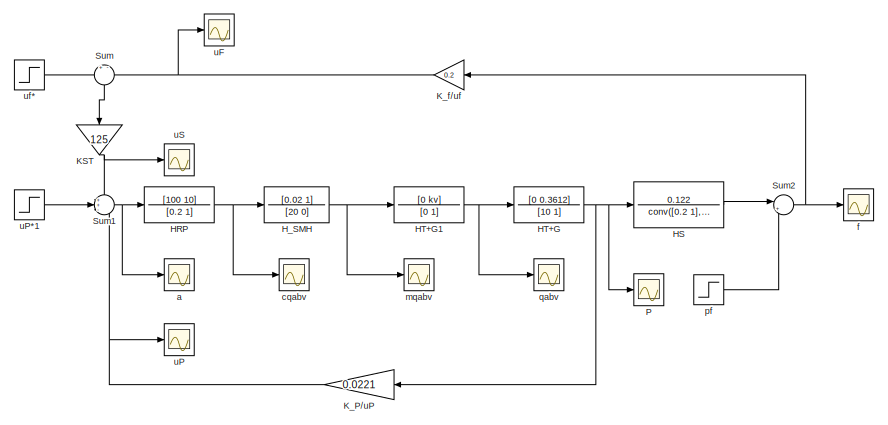
[diagram: root canvas - part 1/4, top left region]
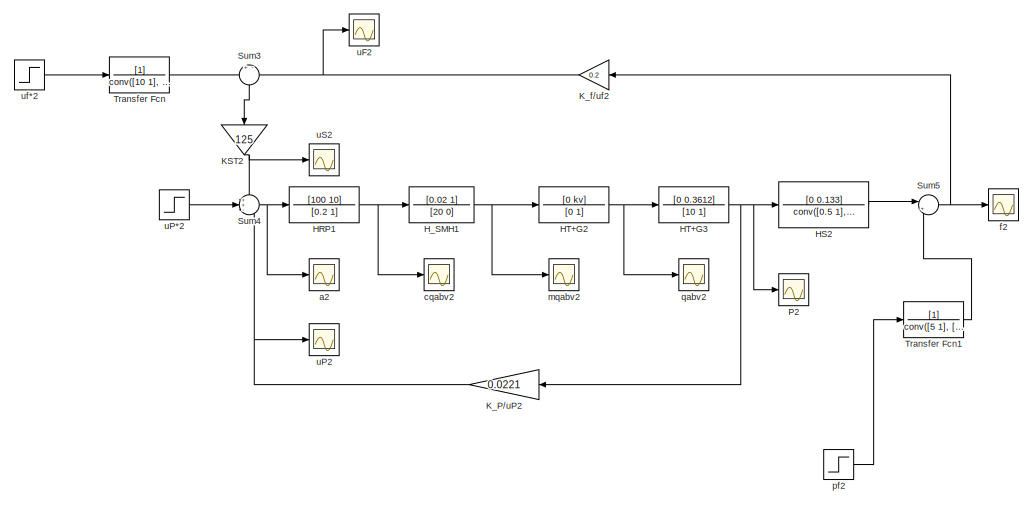
[diagram: root canvas - part 2/4, top right region]
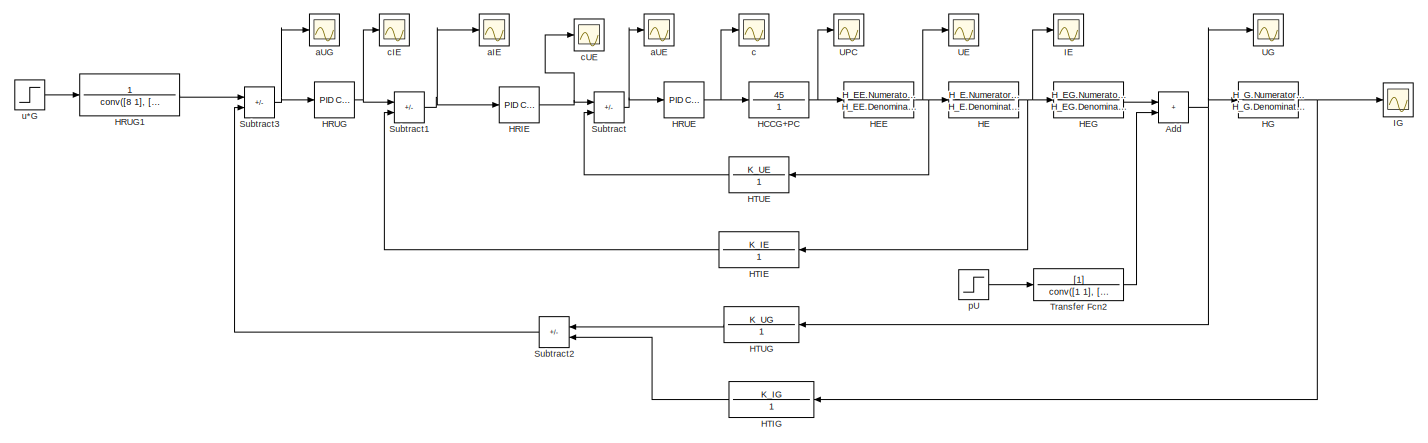
[diagram: root canvas - part 3/4, full width, middle band]
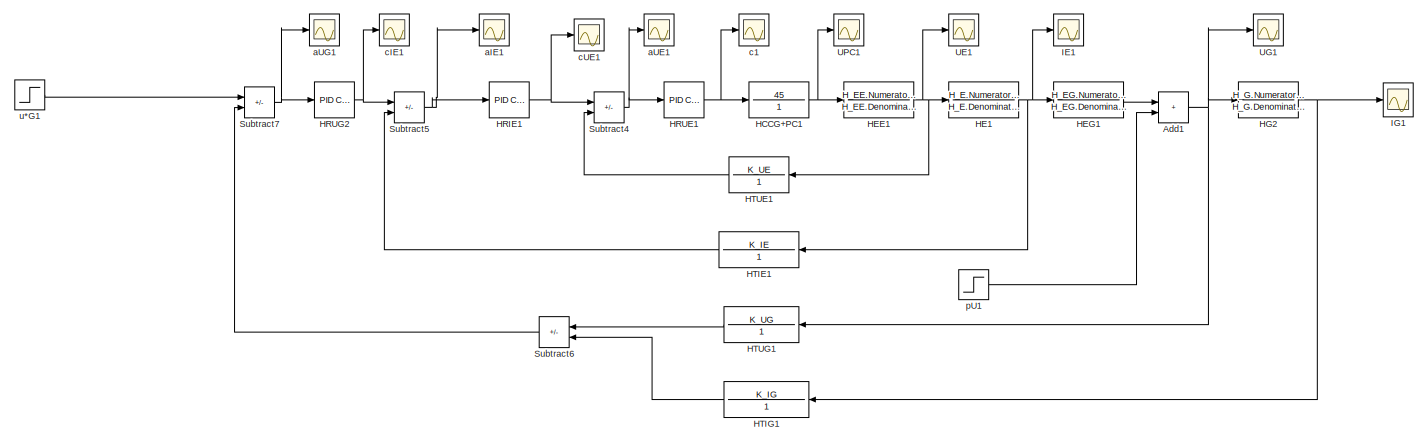
[diagram: root canvas - part 4/4, full width, bottom band]
MODEL slx_85c4b549ced2
KIND model
CONFIG AbsTol = auto
CONFIG EnableMultiTasking = off
CONFIG FixedStep = auto
CONFIG MaxStep = auto
CONFIG MinStep = auto
CONFIG RelTol = 1e-3
CONFIG SampleTimeConstraint = Unconstrained
CONFIG SolverName = VariableStepAuto
CONFIG StartTime = 0.0
CONFIG StopTime = 10.0
BLOCK [Sum] Add
  IconShape = rectangular
BLOCK [Sum] Add1
  IconShape = rectangular
BLOCK [TransferFcn] HCCG+PC
  Denominator = 1
  Numerator = 45
BLOCK [TransferFcn] HCCG+PC1
  Denominator = 1
  Numerator = 45
BLOCK [TransferFcn] HE
  Denominator = H_E.Denominator{1}
  Numerator = H_E.Numerator{1}
BLOCK [TransferFcn] HE1
  Denominator = H_E.Denominator{1}
  Numerator = H_E.Numerator{1}
BLOCK [TransferFcn] HEE
  Denominator = H_EE.Denominator{1}
  Numerator = H_EE.Numerator{1}
BLOCK [TransferFcn] HEE1
  Denominator = H_EE.Denominator{1}
  Numerator = H_EE.Numerator{1}
BLOCK [TransferFcn] HEG
  Denominator = H_EG.Denominator{1}
  Numerator = H_EG.Numerator{1}
BLOCK [TransferFcn] HEG1
  Denominator = H_EG.Denominator{1}
  Numerator = H_EG.Numerator{1}
BLOCK [TransferFcn] HG
  Denominator = H_G.Denominator{1}
  Numerator = H_G.Numerator{1}
BLOCK [TransferFcn] HG2
  Denominator = H_G.Denominator{1}
  Numerator = H_G.Numerator{1}
BLOCK [Reference] HRIE  REF=slpidlib/PID Controller
  LibrarySourceBlock = simulink/Continuous/PID Controller
  SourceBlock = slpidlib/PID Controller
  SourceType = PID 1dof
BLOCK [Reference] HRIE1  REF=slpidlib/PID Controller
  LibrarySourceBlock = simulink/Continuous/PID Controller
  SourceBlock = slpidlib/PID Controller
  SourceType = PID 1dof
BLOCK [TransferFcn] HRP
  Denominator = [0.2 1]
  Numerator = [100 10]
BLOCK [TransferFcn] HRP1
  Denominator = [0.2 1]
  Numerator = [100 10]
BLOCK [Reference] HRUE  REF=slpidlib/PID Controller
  LibrarySourceBlock = simulink/Continuous/PID Controller
  SourceBlock = slpidlib/PID Controller
  SourceType = PID 1dof
BLOCK [Reference] HRUE1  REF=slpidlib/PID Controller
  LibrarySourceBlock = simulink/Continuous/PID Controller
  SourceBlock = slpidlib/PID Controller
  SourceType = PID 1dof
BLOCK [Reference] HRUG  REF=slpidlib/PID Controller
  LibrarySourceBlock = simulink/Continuous/PID Controller
  SourceBlock = slpidlib/PID Controller
  SourceType = PID 1dof
BLOCK [TransferFcn] HRUG1
  Denominator = conv([8 1], [12 1])
  Numerator = 1
BLOCK [Reference] HRUG2  REF=slpidlib/PID Controller
  LibrarySourceBlock = simulink/Continuous/PID Controller
  SourceBlock = slpidlib/PID Controller
  SourceType = PID 1dof
BLOCK [TransferFcn] HS
  Denominator = conv([0.2 1],[10 1])
  Numerator = 0.122
BLOCK [TransferFcn] HS2
  Denominator = conv([0.5 1],[10 1])
  Numerator = [0 0.133]
BLOCK [TransferFcn] HT+G
  Denominator = [10 1]
  Numerator = [0 0.3612]
BLOCK [TransferFcn] HT+G1
  Denominator = [0 1]
  Numerator = [0 kv]
BLOCK [TransferFcn] HT+G2
  Denominator = [0 1]
  Numerator = [0 kv]
BLOCK [TransferFcn] HT+G3
  Denominator = [10 1]
  Numerator = [0 0.3612]
BLOCK [TransferFcn] HTIE
  Denominator = 1
  Numerator = K_IE
BLOCK [TransferFcn] HTIE1
  Denominator = 1
  Numerator = K_IE
BLOCK [TransferFcn] HTIG
  Denominator = 1
  Numerator = K_IG
BLOCK [TransferFcn] HTIG1
  Denominator = 1
  Numerator = K_IG
BLOCK [TransferFcn] HTUE
  Denominator = 1
  Numerator = K_UE
BLOCK [TransferFcn] HTUE1
  Denominator = 1
  Numerator = K_UE
BLOCK [TransferFcn] HTUG
  Denominator = 1
  Numerator = K_UG
BLOCK [TransferFcn] HTUG1
  Denominator = 1
  Numerator = K_UG
BLOCK [TransferFcn] H_SMH
  Denominator = [20 0]
  Numerator = [0.02 1]
BLOCK [TransferFcn] H_SMH1
  Denominator = [20 0]
  Numerator = [0.02 1]
BLOCK [Scope] IE
  Floating = off
  NumInputPorts = 1
  ScopeSpecificationString = Simulink.scopes.TimeScopeBlockCfg('CurrentConfiguration', extmgr.ConfigurationSet(extmgr.Configuration('Core','General UI',true),extmgr.Configuration('Core','Source UI',true),extmgr.Configuration('Sources','WiredSimulink',true,'DataLoggingVariableName','ScopeData18'),extmgr.Configuration('Visuals','Time Domain',true,'SerializedDisplays',{struct('MinYLimReal','-229.75848','MaxYLimReal','2067.82635'...<+1380ch>
BLOCK [Scope] IE1
  Floating = off
  NumInputPorts = 1
  ScopeSpecificationString = Simulink.scopes.TimeScopeBlockCfg('CurrentConfiguration', extmgr.ConfigurationSet(extmgr.Configuration('Core','General UI',true),extmgr.Configuration('Core','Source UI',true),extmgr.Configuration('Sources','WiredSimulink',true,'DataLoggingVariableName','ScopeData19'),extmgr.Configuration('Visuals','Time Domain',true,'SerializedDisplays',{struct('MinYLimReal','-229.75848','MaxYLimReal','2067.82635'...<+1380ch>
BLOCK [Scope] IG
  Floating = off
  NumInputPorts = 1
  ScopeSpecificationString = Simulink.scopes.TimeScopeBlockCfg('CurrentConfiguration', extmgr.ConfigurationSet(extmgr.Configuration('Core','General UI',true),extmgr.Configuration('Core','Source UI',true),extmgr.Configuration('Sources','WiredSimulink',true,'DataLoggingVariableName','ScopeData20'),extmgr.Configuration('Visuals','Time Domain',true,'SerializedDisplays',{struct('MinYLimReal','8552.01279','MaxYLimReal','9481.27331'...<+1481ch>
BLOCK [Scope] IG1
  Floating = off
  NumInputPorts = 1
  ScopeSpecificationString = Simulink.scopes.TimeScopeBlockCfg('CurrentConfiguration', extmgr.ConfigurationSet(extmgr.Configuration('Core','General UI',true),extmgr.Configuration('Core','Source UI',true),extmgr.Configuration('Sources','WiredSimulink',true,'DataLoggingVariableName','ScopeData21'),extmgr.Configuration('Visuals','Time Domain',true,'SerializedDisplays',{struct('MinYLimReal','8552.01279','MaxYLimReal','9481.27331'...<+1481ch>
BLOCK [Gain] KST
  Gain = 125
  NameLocation = left
BLOCK [Gain] KST2
  Gain = 125
  NameLocation = left
BLOCK [Gain] K_P//uP
  Gain = 0.0221
BLOCK [Gain] K_P//uP2
  Gain = 0.0221
BLOCK [Gain] K_f//uf
  Gain = 0.2
BLOCK [Gain] K_f//uf2
  Gain = 0.2
BLOCK [Scope] P
  Floating = off
  NumInputPorts = 1
  ScopeSpecificationString = Simulink.scopes.TimeScopeBlockCfg('CurrentConfiguration', extmgr.ConfigurationSet(extmgr.Configuration('Core','General UI',true),extmgr.Configuration('Core','Source UI',true),extmgr.Configuration('Sources','WiredSimulink',true,'DataLoggingVariableName','ScopeData1'),extmgr.Configuration('Visuals','Time Domain',true,'SerializedDisplays',{struct('MinYLimReal','-94436.80224','MaxYLimReal','83625.3091...<+1391ch>
BLOCK [Scope] P2
  Floating = off
  NumInputPorts = 1
  ScopeSpecificationString = Simulink.scopes.TimeScopeBlockCfg('CurrentConfiguration', extmgr.ConfigurationSet(extmgr.Configuration('Core','General UI',true),extmgr.Configuration('Core','Source UI',true),extmgr.Configuration('Sources','WiredSimulink',true,'DataLoggingVariableName','ScopeData2'),extmgr.Configuration('Visuals','Time Domain',true,'SerializedDisplays',{struct('MinYLimReal','358.00267','MaxYLimReal','422.12362','Y...<+1422ch>
BLOCK [Sum] Subtract
  IconShape = rectangular
  Inputs = +-
BLOCK [Sum] Subtract1
  IconShape = rectangular
  Inputs = +-
BLOCK [Sum] Subtract2
  IconShape = rectangular
  Inputs = +-
BLOCK [Sum] Subtract3
  IconShape = rectangular
  Inputs = +-
BLOCK [Sum] Subtract4
  IconShape = rectangular
  Inputs = +-
BLOCK [Sum] Subtract5
  IconShape = rectangular
  Inputs = +-
BLOCK [Sum] Subtract6
  IconShape = rectangular
  Inputs = +-
BLOCK [Sum] Subtract7
  IconShape = rectangular
  Inputs = +-
BLOCK [Sum] Sum
  Inputs = +-
  NameLocation = left
BLOCK [Sum] Sum1
  Inputs = ++-
BLOCK [Sum] Sum2
  Inputs = |++
BLOCK [Sum] Sum3
  Inputs = +-
  NameLocation = left
BLOCK [Sum] Sum4
  Inputs = ++-
BLOCK [Sum] Sum5
  Inputs = |++
BLOCK [TransferFcn] Transfer Fcn
  Denominator = conv([10 1], [20 1])
BLOCK [TransferFcn] Transfer Fcn1
  Denominator = conv([5 1], [10 1])
BLOCK [TransferFcn] Transfer Fcn2
  Denominator = conv([1 1], [1 1])
BLOCK [Scope] UE
  Floating = off
  NumInputPorts = 1
  ScopeSpecificationString = Simulink.scopes.TimeScopeBlockCfg('CurrentConfiguration', extmgr.ConfigurationSet(extmgr.Configuration('Core','General UI',true),extmgr.Configuration('Core','Source UI',true),extmgr.Configuration('Sources','WiredSimulink',true,'DataLoggingVariableName','ScopeData22'),extmgr.Configuration('Visuals','Time Domain',true,'SerializedDisplays',{struct('MinYLimReal','-77.49906','MaxYLimReal','697.49155','...<+1373ch>
BLOCK [Scope] UE1
  Floating = off
  NumInputPorts = 1
  ScopeSpecificationString = Simulink.scopes.TimeScopeBlockCfg('CurrentConfiguration', extmgr.ConfigurationSet(extmgr.Configuration('Core','General UI',true),extmgr.Configuration('Core','Source UI',true),extmgr.Configuration('Sources','WiredSimulink',true,'DataLoggingVariableName','ScopeData23'),extmgr.Configuration('Visuals','Time Domain',true,'SerializedDisplays',{struct('MinYLimReal','-77.54802','MaxYLimReal','697.9322','Y...<+1369ch>
BLOCK [Scope] UG
  Floating = off
  NumInputPorts = 1
  ScopeSpecificationString = Simulink.scopes.TimeScopeBlockCfg('CurrentConfiguration', extmgr.ConfigurationSet(extmgr.Configuration('Core','General UI',true),extmgr.Configuration('Core','Source UI',true),extmgr.Configuration('Sources','WiredSimulink',true,'DataLoggingVariableName','ScopeData24'),extmgr.Configuration('Visuals','Time Domain',true,'SerializedDisplays',{struct('MinYLimReal','-3749.95953','MaxYLimReal','33749.6357...<+1440ch>
BLOCK [Scope] UG1
  Floating = off
  NumInputPorts = 1
  ScopeSpecificationString = Simulink.scopes.TimeScopeBlockCfg('CurrentConfiguration', extmgr.ConfigurationSet(extmgr.Configuration('Core','General UI',true),extmgr.Configuration('Core','Source UI',true),extmgr.Configuration('Sources','WiredSimulink',true,'DataLoggingVariableName','ScopeData25'),extmgr.Configuration('Visuals','Time Domain',true,'SerializedDisplays',{struct('MinYLimReal','-6484.30614','MaxYLimReal','58358.7552...<+1441ch>
BLOCK [Scope] UPC
  Floating = off
  NumInputPorts = 1
  ScopeSpecificationString = Simulink.scopes.TimeScopeBlockCfg('CurrentConfiguration', extmgr.ConfigurationSet(extmgr.Configuration('Core','General UI',true),extmgr.Configuration('Core','Source UI',true),extmgr.Configuration('Sources','WiredSimulink',true,'DataLoggingVariableName','ScopeData26'),extmgr.Configuration('Visuals','Time Domain',true,'SerializedDisplays',{struct('MinYLimReal','-46.52339','MaxYLimReal','418.71048','...<+1377ch>
BLOCK [Scope] UPC1
  Floating = off
  NumInputPorts = 1
  ScopeSpecificationString = Simulink.scopes.TimeScopeBlockCfg('CurrentConfiguration', extmgr.ConfigurationSet(extmgr.Configuration('Core','General UI',true),extmgr.Configuration('Core','Source UI',true),extmgr.Configuration('Sources','WiredSimulink',true,'DataLoggingVariableName','ScopeData27'),extmgr.Configuration('Visuals','Time Domain',true,'SerializedDisplays',{struct('MinYLimReal','-52.25544','MaxYLimReal','470.29896','...<+1377ch>
BLOCK [Scope] a
  Floating = off
  NumInputPorts = 1
  ScopeSpecificationString = Simulink.scopes.TimeScopeBlockCfg('CurrentConfiguration', extmgr.ConfigurationSet(extmgr.Configuration('Core','General UI',true),extmgr.Configuration('Core','Source UI',true),extmgr.Configuration('Sources','WiredSimulink',true,'DataLoggingVariableName','ScopeData3'),extmgr.Configuration('Visuals','Time Domain',true),extmgr.Configuration('Tools','Plot Navigation',true),extmgr.Configuration('Tools',...<+40ch>
BLOCK [Scope] a2
  Floating = off
  NumInputPorts = 1
  ScopeSpecificationString = Simulink.scopes.TimeScopeBlockCfg('CurrentConfiguration', extmgr.ConfigurationSet(extmgr.Configuration('Core','General UI',true),extmgr.Configuration('Core','Source UI',true),extmgr.Configuration('Sources','WiredSimulink',true,'DataLoggingVariableName','ScopeData4'),extmgr.Configuration('Visuals','Time Domain',true),extmgr.Configuration('Tools','Plot Navigation',true),extmgr.Configuration('Tools',...<+40ch>
BLOCK [Scope] aIE
  Floating = off
  NumInputPorts = 1
  ScopeSpecificationString = Simulink.scopes.TimeScopeBlockCfg('CurrentConfiguration', extmgr.ConfigurationSet(extmgr.Configuration('Core','General UI',true),extmgr.Configuration('Core','Source UI',true),extmgr.Configuration('Sources','WiredSimulink',true,'DataLoggingVariableName','ScopeData28'),extmgr.Configuration('Visuals','Time Domain',true,'SerializedDisplays',{struct('MinYLimReal','-0.0013','MaxYLimReal','0.01161','YLab...<+1367ch>
BLOCK [Scope] aIE1
  Floating = off
  NumInputPorts = 1
  ScopeSpecificationString = Simulink.scopes.TimeScopeBlockCfg('CurrentConfiguration', extmgr.ConfigurationSet(extmgr.Configuration('Core','General UI',true),extmgr.Configuration('Core','Source UI',true),extmgr.Configuration('Sources','WiredSimulink',true,'DataLoggingVariableName','ScopeData29'),extmgr.Configuration('Visuals','Time Domain',true,'SerializedDisplays',{struct('MinYLimReal','-0.00416','MaxYLimReal','0.01519','YLa...<+1369ch>
BLOCK [Scope] aUE
  Floating = off
  NumInputPorts = 1
  ScopeSpecificationString = Simulink.scopes.TimeScopeBlockCfg('CurrentConfiguration', extmgr.ConfigurationSet(extmgr.Configuration('Core','General UI',true),extmgr.Configuration('Core','Source UI',true),extmgr.Configuration('Sources','WiredSimulink',true,'DataLoggingVariableName','ScopeData30'),extmgr.Configuration('Visuals','Time Domain',true,'SerializedDisplays',{struct('MinYLimReal','-0.00192','MaxYLimReal','0.00654','YLa...<+1368ch>
BLOCK [Scope] aUE1
  Floating = off
  NumInputPorts = 1
  ScopeSpecificationString = Simulink.scopes.TimeScopeBlockCfg('CurrentConfiguration', extmgr.ConfigurationSet(extmgr.Configuration('Core','General UI',true),extmgr.Configuration('Core','Source UI',true),extmgr.Configuration('Sources','WiredSimulink',true,'DataLoggingVariableName','ScopeData31'),extmgr.Configuration('Visuals','Time Domain',true,'SerializedDisplays',{struct('MinYLimReal','-0.33038','MaxYLimReal','0.33257','YLa...<+1368ch>
BLOCK [Scope] aUG
  Floating = off
  NumInputPorts = 1
  ScopeSpecificationString = Simulink.scopes.TimeScopeBlockCfg('CurrentConfiguration', extmgr.ConfigurationSet(extmgr.Configuration('Core','General UI',true),extmgr.Configuration('Core','Source UI',true),extmgr.Configuration('Sources','WiredSimulink',true,'DataLoggingVariableName','ScopeData32'),extmgr.Configuration('Visuals','Time Domain',true,'SerializedDisplays',{struct('MinYLimReal','-0.00827','MaxYLimReal','0.01706','YLa...<+1369ch>
BLOCK [Scope] aUG1
  Floating = off
  NumInputPorts = 1
  ScopeSpecificationString = Simulink.scopes.TimeScopeBlockCfg('CurrentConfiguration', extmgr.ConfigurationSet(extmgr.Configuration('Core','General UI',true),extmgr.Configuration('Core','Source UI',true),extmgr.Configuration('Sources','WiredSimulink',true,'DataLoggingVariableName','ScopeData33'),extmgr.Configuration('Visuals','Time Domain',true,'SerializedDisplays',{struct('MinYLimReal','-0.00827','MaxYLimReal','0.01706','YLa...<+1369ch>
BLOCK [Scope] c
  Floating = off
  NumInputPorts = 1
  ScopeSpecificationString = Simulink.scopes.TimeScopeBlockCfg('CurrentConfiguration', extmgr.ConfigurationSet(extmgr.Configuration('Core','General UI',true),extmgr.Configuration('Core','Source UI',true),extmgr.Configuration('Sources','WiredSimulink',true,'DataLoggingVariableName','ScopeData34'),extmgr.Configuration('Visuals','Time Domain',true,'SerializedDisplays',{struct('MinYLimReal','-1.15151','MaxYLimReal','10.36356','YL...<+1412ch>
BLOCK [Scope] c1
  Floating = off
  NumInputPorts = 1
  ScopeSpecificationString = Simulink.scopes.TimeScopeBlockCfg('CurrentConfiguration', extmgr.ConfigurationSet(extmgr.Configuration('Core','General UI',true),extmgr.Configuration('Core','Source UI',true),extmgr.Configuration('Sources','WiredSimulink',true,'DataLoggingVariableName','ScopeData35'),extmgr.Configuration('Visuals','Time Domain',true,'SerializedDisplays',{struct('MinYLimReal','-1482374.16127','MaxYLimReal','1601143...<+1455ch>
BLOCK [Scope] cIE
  Floating = off
  NumInputPorts = 1
  ScopeSpecificationString = Simulink.scopes.TimeScopeBlockCfg('CurrentConfiguration', extmgr.ConfigurationSet(extmgr.Configuration('Core','General UI',true),extmgr.Configuration('Core','Source UI',true),extmgr.Configuration('Sources','WiredSimulink',true,'DataLoggingVariableName','ScopeData36'),extmgr.Configuration('Visuals','Time Domain',true,'SerializedDisplays',{struct('MinYLimReal','-1.29075','MaxYLimReal','11.61674','YL...<+1368ch>
BLOCK [Scope] cIE1
  Floating = off
  NumInputPorts = 1
  ScopeSpecificationString = Simulink.scopes.TimeScopeBlockCfg('CurrentConfiguration', extmgr.ConfigurationSet(extmgr.Configuration('Core','General UI',true),extmgr.Configuration('Core','Source UI',true),extmgr.Configuration('Sources','WiredSimulink',true,'DataLoggingVariableName','ScopeData37'),extmgr.Configuration('Visuals','Time Domain',true,'SerializedDisplays',{struct('MinYLimReal','-1.29192','MaxYLimReal','11.62731','YL...<+1368ch>
BLOCK [Scope] cUE
  Floating = off
  NumInputPorts = 1
  ScopeSpecificationString = Simulink.scopes.TimeScopeBlockCfg('CurrentConfiguration', extmgr.ConfigurationSet(extmgr.Configuration('Core','General UI',true),extmgr.Configuration('Core','Source UI',true),extmgr.Configuration('Sources','WiredSimulink',true,'DataLoggingVariableName','ScopeData38'),extmgr.Configuration('Visuals','Time Domain',true,'SerializedDisplays',{struct('MinYLimReal','-1.29096','MaxYLimReal','11.61866','YL...<+1368ch>
BLOCK [Scope] cUE1
  Floating = off
  NumInputPorts = 1
  ScopeSpecificationString = Simulink.scopes.TimeScopeBlockCfg('CurrentConfiguration', extmgr.ConfigurationSet(extmgr.Configuration('Core','General UI',true),extmgr.Configuration('Core','Source UI',true),extmgr.Configuration('Sources','WiredSimulink',true,'DataLoggingVariableName','ScopeData39'),extmgr.Configuration('Visuals','Time Domain',true,'SerializedDisplays',{struct('MinYLimReal','-369900.28947','MaxYLimReal','400208.7...<+1403ch>
BLOCK [Scope] cqabv
  Floating = off
  NumInputPorts = 1
  ScopeSpecificationString = Simulink.scopes.TimeScopeBlockCfg('CurrentConfiguration', extmgr.ConfigurationSet(extmgr.Configuration('Core','General UI',true),extmgr.Configuration('Core','Source UI',true),extmgr.Configuration('Sources','WiredSimulink',true,'DataLoggingVariableName','ScopeData5'),extmgr.Configuration('Visuals','Time Domain',true,'SerializedDisplays',{struct('MinYLimReal','-165759.18982','MaxYLimReal','712862.13...<+1450ch>
BLOCK [Scope] cqabv2
  Floating = off
  NumInputPorts = 1
  ScopeSpecificationString = Simulink.scopes.TimeScopeBlockCfg('CurrentConfiguration', extmgr.ConfigurationSet(extmgr.Configuration('Core','General UI',true),extmgr.Configuration('Core','Source UI',true),extmgr.Configuration('Sources','WiredSimulink',true,'DataLoggingVariableName','ScopeData6'),extmgr.Configuration('Visuals','Time Domain',true,'SerializedDisplays',{struct('MinYLimReal','-1333.61543','MaxYLimReal','5705.17301'...<+1439ch>
BLOCK [Scope] f
  Floating = off
  NumInputPorts = 1
  ScopeSpecificationString = Simulink.scopes.TimeScopeBlockCfg('CurrentConfiguration', extmgr.ConfigurationSet(extmgr.Configuration('Core','General UI',true),extmgr.Configuration('Core','Source UI',true),extmgr.Configuration('Sources','WiredSimulink',true,'DataLoggingVariableName','ScopeData7'),extmgr.Configuration('Visuals','Time Domain',true,'SerializedDisplays',{struct('MinYLimReal','-9.85202','MaxYLimReal','88.66821','YLa...<+1440ch>
BLOCK [Scope] f2
  Floating = off
  NumInputPorts = 1
  ScopeSpecificationString = Simulink.scopes.TimeScopeBlockCfg('CurrentConfiguration', extmgr.ConfigurationSet(extmgr.Configuration('Core','General UI',true),extmgr.Configuration('Core','Source UI',true),extmgr.Configuration('Sources','WiredSimulink',true,'DataLoggingVariableName','ScopeData8'),extmgr.Configuration('Visuals','Time Domain',true,'SerializedDisplays',{struct('MinYLimReal','-6.18424','MaxYLimReal','55.65819','YLa...<+1440ch>
BLOCK [Scope] mqabv
  Floating = off
  NumInputPorts = 1
  ScopeSpecificationString = Simulink.scopes.TimeScopeBlockCfg('CurrentConfiguration', extmgr.ConfigurationSet(extmgr.Configuration('Core','General UI',true),extmgr.Configuration('Core','Source UI',true),extmgr.Configuration('Sources','WiredSimulink',true,'DataLoggingVariableName','ScopeData9'),extmgr.Configuration('Visuals','Time Domain',true,'SerializedDisplays',{struct('MinYLimReal','-1598.62008','MaxYLimReal','7122.0689',...<+1436ch>
BLOCK [Scope] mqabv2
  Floating = off
  NumInputPorts = 1
  ScopeSpecificationString = Simulink.scopes.TimeScopeBlockCfg('CurrentConfiguration', extmgr.ConfigurationSet(extmgr.Configuration('Core','General UI',true),extmgr.Configuration('Core','Source UI',true),extmgr.Configuration('Sources','WiredSimulink',true,'DataLoggingVariableName','ScopeData10'),extmgr.Configuration('Visuals','Time Domain',true,'SerializedDisplays',{struct('MinYLimReal','-12.65767','MaxYLimReal','57.02671','Y...<+1426ch>
BLOCK [Step] pU
  After = -1000
  SampleTime = 0
  Time = 70
BLOCK [Step] pU1
  After = -1000
  SampleTime = 0
  Time = 70
BLOCK [Step] pf
  After = -5
  SampleTime = 0
  Time = 150
BLOCK [Step] pf2
  After = -5
  SampleTime = 0
  Time = 150
BLOCK [Scope] qabv
  Floating = off
  NumInputPorts = 1
  ScopeSpecificationString = Simulink.scopes.TimeScopeBlockCfg('CurrentConfiguration', extmgr.ConfigurationSet(extmgr.Configuration('Core','General UI',true),extmgr.Configuration('Core','Source UI',true),extmgr.Configuration('Sources','WiredSimulink',true,'DataLoggingVariableName','ScopeData11'),extmgr.Configuration('Visuals','Time Domain',true,'SerializedDisplays',{struct('MinYLimReal','-19663026.98221','MaxYLimReal','876014...<+1419ch>
BLOCK [Scope] qabv2
  Floating = off
  NumInputPorts = 1
  ScopeSpecificationString = Simulink.scopes.TimeScopeBlockCfg('CurrentConfiguration', extmgr.ConfigurationSet(extmgr.Configuration('Core','General UI',true),extmgr.Configuration('Core','Source UI',true),extmgr.Configuration('Sources','WiredSimulink',true,'DataLoggingVariableName','ScopeData12'),extmgr.Configuration('Visuals','Time Domain',true,'SerializedDisplays',{struct('MinYLimReal','-155689.39192','MaxYLimReal','701428.5...<+1399ch>
BLOCK [Step] u*G
  After = 9.5
  SampleTime = 0
  Time = 0
BLOCK [Step] u*G1
  After = 9.5
  SampleTime = 0
  Time = 0
BLOCK [Scope] uF
  Floating = off
  NumInputPorts = 1
  ScopeSpecificationString = Simulink.scopes.TimeScopeBlockCfg('CurrentConfiguration', extmgr.ConfigurationSet(extmgr.Configuration('Core','General UI',true),extmgr.Configuration('Core','Source UI',true),extmgr.Configuration('Sources','WiredSimulink',true,'DataLoggingVariableName','ScopeData13'),extmgr.Configuration('Visuals','Time Domain',true),extmgr.Configuration('Tools','Plot Navigation',true),extmgr.Configuration('Tools'...<+41ch>
BLOCK [Scope] uF2
  Floating = off
  NumInputPorts = 1
  ScopeSpecificationString = Simulink.scopes.TimeScopeBlockCfg('CurrentConfiguration', extmgr.ConfigurationSet(extmgr.Configuration('Core','General UI',true),extmgr.Configuration('Core','Source UI',true),extmgr.Configuration('Sources','WiredSimulink',true,'DataLoggingVariableName','ScopeData14'),extmgr.Configuration('Visuals','Time Domain',true),extmgr.Configuration('Tools','Plot Navigation',true),extmgr.Configuration('Tools'...<+41ch>
BLOCK [Scope] uP
  Floating = off
  NumInputPorts = 1
  ScopeSpecificationString = Simulink.scopes.TimeScopeBlockCfg('CurrentConfiguration', extmgr.ConfigurationSet(extmgr.Configuration('Core','General UI',true),extmgr.Configuration('Core','Source UI',true),extmgr.Configuration('Sources','WiredSimulink',true,'DataLoggingVariableName','ScopeData15'),extmgr.Configuration('Visuals','Time Domain',true,'SerializedDisplays',{struct('MinYLimReal','-1345.08762','MaxYLimReal','1443.71704...<+1388ch>
BLOCK [Step] uP*1
  After = 10
  SampleTime = 0
BLOCK [Step] uP*2
  After = 10
  SampleTime = 0
BLOCK [Scope] uP2
  Floating = off
  NumInputPorts = 1
  ScopeSpecificationString = Simulink.scopes.TimeScopeBlockCfg('CurrentConfiguration', extmgr.ConfigurationSet(extmgr.Configuration('Core','General UI',true),extmgr.Configuration('Core','Source UI',true),extmgr.Configuration('Sources','WiredSimulink',true,'DataLoggingVariableName','ScopeData16'),extmgr.Configuration('Visuals','Time Domain',true,'SerializedDisplays',{struct('MinYLimReal','-1345.08762','MaxYLimReal','1443.71704...<+1388ch>
BLOCK [Scope] uS
  Floating = off
  NameLocation = top
  NumInputPorts = 1
  ScopeSpecificationString = Simulink.scopes.TimeScopeBlockCfg('CurrentConfiguration', extmgr.ConfigurationSet(extmgr.Configuration('Core','General UI',true),extmgr.Configuration('Core','Source UI',true),extmgr.Configuration('Sources','WiredSimulink',true,'DataLoggingVariableName','ScopeData17'),extmgr.Configuration('Visuals','Time Domain',true),extmgr.Configuration('Tools','Plot Navigation',true),extmgr.Configuration('Tools'...<+41ch>
BLOCK [Scope] uS2
  Floating = off
  NameLocation = top
  NumInputPorts = 1
  ScopeSpecificationString = Simulink.scopes.TimeScopeBlockCfg('CurrentConfiguration', extmgr.ConfigurationSet(extmgr.Configuration('Core','General UI',true),extmgr.Configuration('Core','Source UI',true),extmgr.Configuration('Sources','WiredSimulink',true),extmgr.Configuration('Visuals','Time Domain',true),extmgr.Configuration('Tools','Plot Navigation',true),extmgr.Configuration('Tools','Measurements',true)),'Version','2023a'...<+1ch>
BLOCK [Step] uf*
  After = 10
  SampleTime = 0
  Time = 0
BLOCK [Step] uf*2
  After = 10
  SampleTime = 0
  Time = 0
NET Add1:1 -> HG2:1, HTUG1:1, UG1:1
NET Add:1 -> HG:1, HTUG:1, UG:1
NET HCCG+PC1:1 -> HEE1:1, UPC1:1
NET HCCG+PC:1 -> HEE:1, UPC:1
NET HE1:1 -> HEG1:1, HTIE1:1, IE1:1
NET HE:1 -> HEG:1, HTIE:1, IE:1
NET HEE1:1 -> HE1:1, HTUE1:1, UE1:1
NET HEE:1 -> HE:1, HTUE:1, UE:1
LINE HEG1:1 -> Add1:1
LINE HEG:1 -> Add:1
NET HG2:1 -> HTIG1:1, IG1:1
NET HG:1 -> HTIG:1, IG:1
NET HRIE1:1 -> Subtract4:1, cUE1:1
NET HRIE:1 -> Subtract:1, cUE:1
NET HRP1:1 -> H_SMH1:1, cqabv2:1
NET HRP:1 -> H_SMH:1, cqabv:1
NET HRUE1:1 -> HCCG+PC1:1, c1:1
NET HRUE:1 -> HCCG+PC:1, c:1
LINE HRUG1:1 -> Subtract3:1
NET HRUG2:1 -> Subtract5:1, cIE1:1
NET HRUG:1 -> Subtract1:1, cIE:1
LINE HS2:1 -> Sum5:1
LINE HS:1 -> Sum2:1
NET HT+G1:1 -> HT+G:1, qabv:1
NET HT+G2:1 -> HT+G3:1, qabv2:1
NET HT+G3:1 -> HS2:1, K_P//uP2:1, P2:1
NET HT+G:1 -> HS:1, K_P//uP:1, P:1
LINE HTIE1:1 -> Subtract5:2
LINE HTIE:1 -> Subtract1:2
LINE HTIG1:1 -> Subtract6:2
LINE HTIG:1 -> Subtract2:2
LINE HTUE1:1 -> Subtract4:2
LINE HTUE:1 -> Subtract:2
LINE HTUG1:1 -> Subtract6:1
LINE HTUG:1 -> Subtract2:1
NET H_SMH1:1 -> HT+G2:1, mqabv2:1
NET H_SMH:1 -> HT+G1:1, mqabv:1
NET KST2:1 -> Sum4:1, uS2:1
NET KST:1 -> Sum1:1, uS:1
NET K_P//uP2:1 -> Sum4:3, uP2:1
NET K_P//uP:1 -> Sum1:3, uP:1
NET K_f//uf2:1 -> Sum3:2, uF2:1
NET K_f//uf:1 -> Sum:2, uF:1
NET Subtract1:1 -> HRIE:1, aIE:1
LINE Subtract2:1 -> Subtract3:2
NET Subtract3:1 -> HRUG:1, aUG:1
NET Subtract4:1 -> HRUE1:1, aUE1:1
NET Subtract5:1 -> HRIE1:1, aIE1:1
LINE Subtract6:1 -> Subtract7:2
NET Subtract7:1 -> HRUG2:1, aUG1:1
NET Subtract:1 -> HRUE:1, aUE:1
NET Sum1:1 -> HRP:1, a:1
NET Sum2:1 -> K_f//uf:1, f:1
LINE Sum3:1 -> KST2:1
NET Sum4:1 -> HRP1:1, a2:1
NET Sum5:1 -> K_f//uf2:1, f2:1
LINE Sum:1 -> KST:1
LINE Transfer Fcn1:1 -> Sum5:2
LINE Transfer Fcn2:1 -> Add:2
LINE Transfer Fcn:1 -> Sum3:1
LINE pU1:1 -> Add1:2
LINE pU:1 -> Transfer Fcn2:1
LINE pf2:1 -> Transfer Fcn1:1
LINE pf:1 -> Sum2:2
LINE u*G1:1 -> Subtract7:1
LINE u*G:1 -> HRUG1:1
LINE uP*1:1 -> Sum1:2
LINE uP*2:1 -> Sum4:2
LINE uf*2:1 -> Transfer Fcn:1
LINE uf*:1 -> Sum:1
note: NET lines group one-source signal fan-out (src -> all destinations, sorted); 1:1 wires keep LINE
